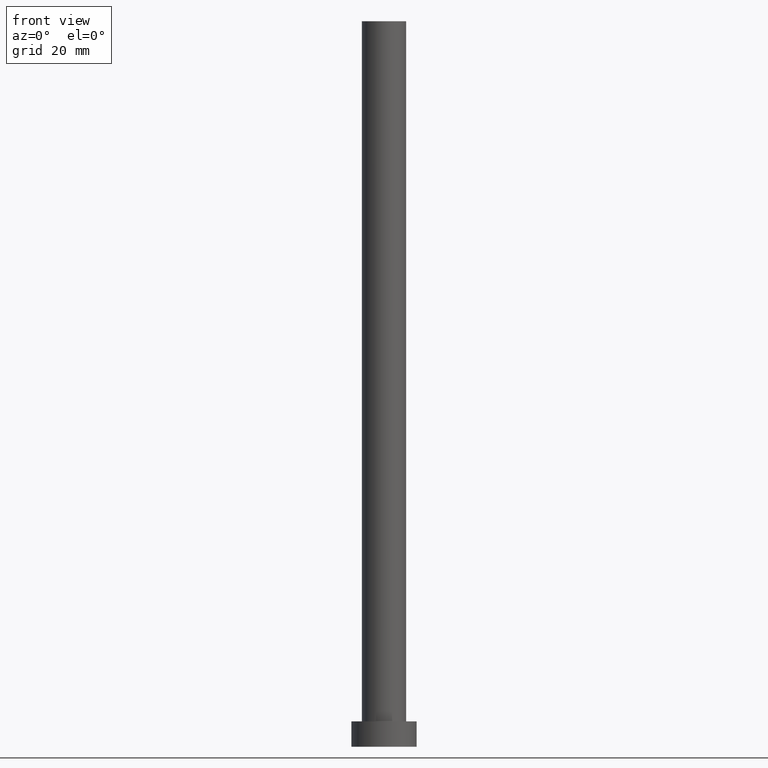
[diagram: clean part render]
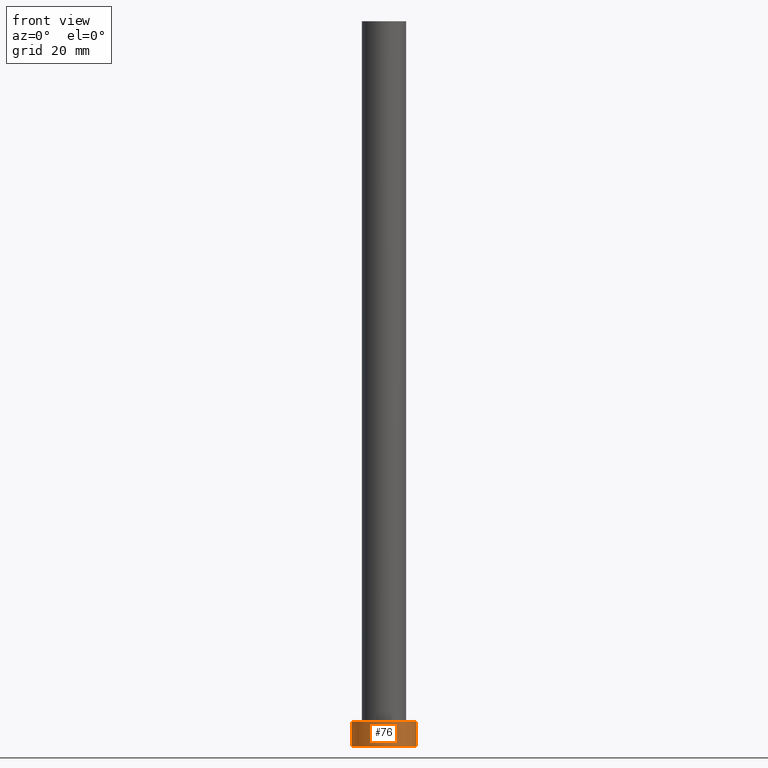
[diagram: same view with one face highlighted and labeled with its STEP entity id]
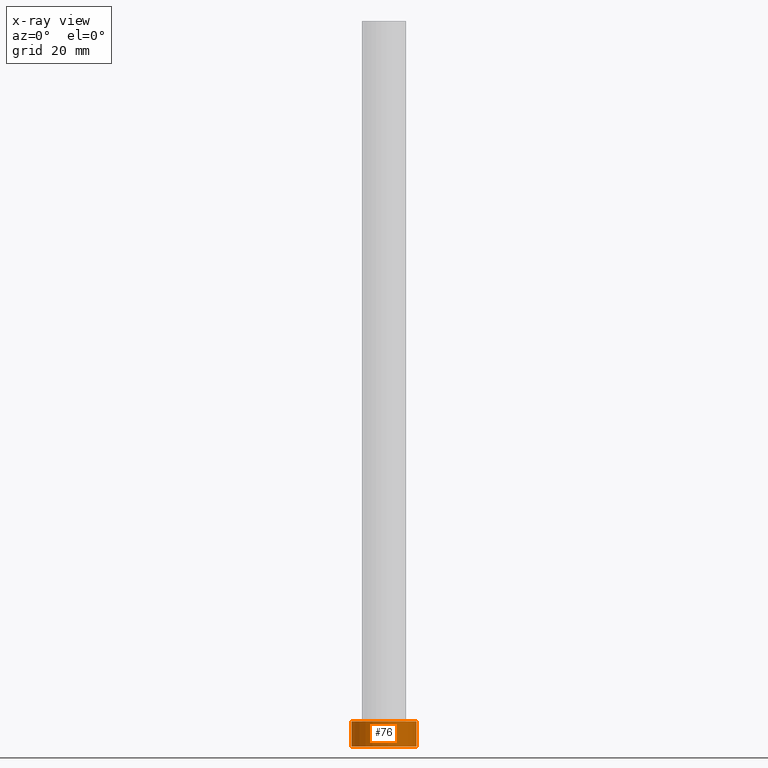
[diagram: x-ray of the same camera — body ghosted, the highlighted face saturated]
A machine part, front view. The second image highlights one B-rep face of the part: STEP entity #76.
The next image is the same camera in x-ray: the body ghosted, the highlighted face saturated — about 0% of this face is hidden behind the body in this view.
In plain terms, the highlighted cylindrical surface (edge-blend (fillet) strip) has radius 9 mm, axis along (-0, -0, -1).
Its self-contained STEP definition (entity closure, byte-faithful):
#2 = CIRCLE ( 'NONE', #216, 9.000000000000000000 ) ;
#10 = EDGE_CURVE ( 'NONE', #226, #17, #2, .T. ) ;
#15 = CYLINDRICAL_SURFACE ( 'NONE', #152, 9.000000000000000000 ) ;
#17 = VERTEX_POINT ( 'NONE', #148 ) ;
#38 = CARTESIAN_POINT ( 'NONE',  ( -9.000000000000000000, 0.000000000000000000, 7.000000000000000000 ) ) ;
#43 = DIRECTION ( 'NONE',  ( -0.000000000000000000, -0.000000000000000000, -1.000000000000000000 ) ) ;
#62 = CIRCLE ( 'NONE', #83, 9.000000000000000000 ) ;
#76 = ADVANCED_FACE ( 'NONE', ( #115 ), #15, .T. ) ;
#83 = AXIS2_PLACEMENT_3D ( 'NONE', #136, #86, #137 ) ;
#86 = DIRECTION ( 'NONE',  ( 0.000000000000000000, 0.000000000000000000, 1.000000000000000000 ) ) ;
#94 = DIRECTION ( 'NONE',  ( -1.000000000000000000, 0.000000000000000000, 0.000000000000000000 ) ) ;
#105 = LINE ( 'NONE', #38, #205 ) ;
#112 = ORIENTED_EDGE ( 'NONE', *, *, #197, .F. ) ;
#115 = FACE_OUTER_BOUND ( 'NONE', #116, .T. ) ;
#116 = EDGE_LOOP ( 'NONE', ( #112, #151, #164, #210 ) ) ;
#130 = CARTESIAN_POINT ( 'NONE',  ( 0.000000000000000000, 0.000000000000000000, 7.000000000000000000 ) ) ;
#132 = DIRECTION ( 'NONE',  ( 1.000000000000000000, 0.000000000000000000, 0.000000000000000000 ) ) ;
#134 = DIRECTION ( 'NONE',  ( 0.000000000000000000, 0.000000000000000000, 1.000000000000000000 ) ) ;
#136 = CARTESIAN_POINT ( 'NONE',  ( 0.000000000000000000, 0.000000000000000000, 0.000000000000000000 ) ) ;
#137 = DIRECTION ( 'NONE',  ( 1.000000000000000000, 0.000000000000000000, 0.000000000000000000 ) ) ;
#138 = CARTESIAN_POINT ( 'NONE',  ( 9.000000000000000000, 1.102182119232617714E-15, 0.000000000000000000 ) ) ;
#148 = CARTESIAN_POINT ( 'NONE',  ( 9.000000000000000000, 1.102182119232617714E-15, 7.000000000000000000 ) ) ;
#150 = DIRECTION ( 'NONE',  ( -0.000000000000000000, -0.000000000000000000, -1.000000000000000000 ) ) ;
#151 = ORIENTED_EDGE ( 'NONE', *, *, #10, .F. ) ;
#152 = AXIS2_PLACEMENT_3D ( 'NONE', #130, #150, #94 ) ;
#164 = ORIENTED_EDGE ( 'NONE', *, *, #243, .T. ) ;
#170 = VERTEX_POINT ( 'NONE', #138 ) ;
#179 = CARTESIAN_POINT ( 'NONE',  ( 9.000000000000000000, 1.102182119232617714E-15, 7.000000000000000000 ) ) ;
#184 = VECTOR ( 'NONE', #43, 1000.000000000000000 ) ;
#189 = CARTESIAN_POINT ( 'NONE',  ( 0.000000000000000000, 0.000000000000000000, 7.000000000000000000 ) ) ;
#197 = EDGE_CURVE ( 'NONE', #17, #170, #218, .T. ) ;
#205 = VECTOR ( 'NONE', #232, 1000.000000000000000 ) ;
#210 = ORIENTED_EDGE ( 'NONE', *, *, #253, .T. ) ;
#211 = VERTEX_POINT ( 'NONE', #235 ) ;
#216 = AXIS2_PLACEMENT_3D ( 'NONE', #189, #134, #132 ) ;
#218 = LINE ( 'NONE', #179, #184 ) ;
#226 = VERTEX_POINT ( 'NONE', #230 ) ;
#230 = CARTESIAN_POINT ( 'NONE',  ( -9.000000000000000000, 0.000000000000000000, 7.000000000000000000 ) ) ;
#232 = DIRECTION ( 'NONE',  ( -0.000000000000000000, -0.000000000000000000, -1.000000000000000000 ) ) ;
#235 = CARTESIAN_POINT ( 'NONE',  ( -9.000000000000000000, 0.000000000000000000, 0.000000000000000000 ) ) ;
#243 = EDGE_CURVE ( 'NONE', #226, #211, #105, .T. ) ;
#253 = EDGE_CURVE ( 'NONE', #211, #170, #62, .T. ) ;